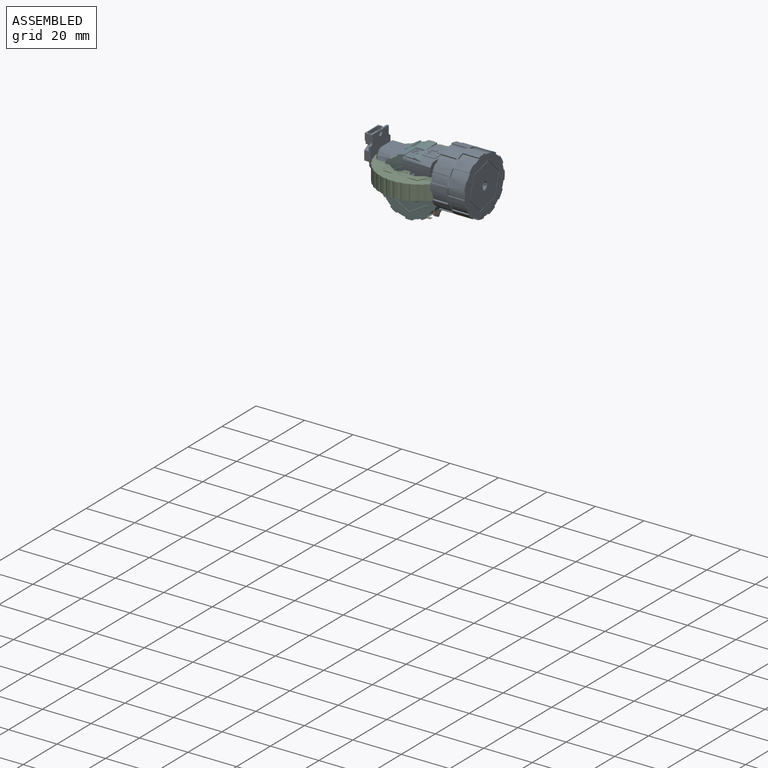
[diagram: assembled view]
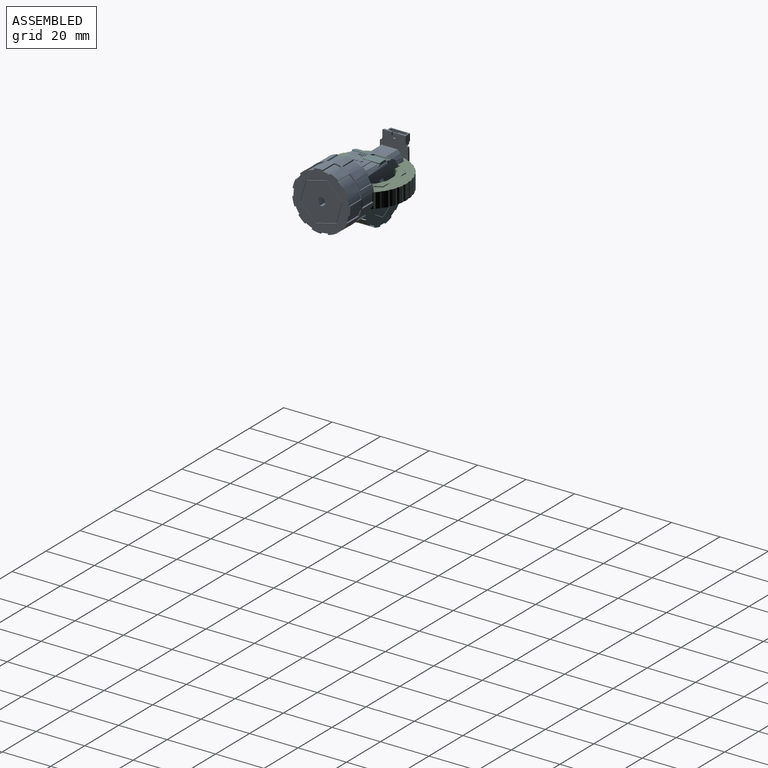
[diagram: assembled view, second angle]
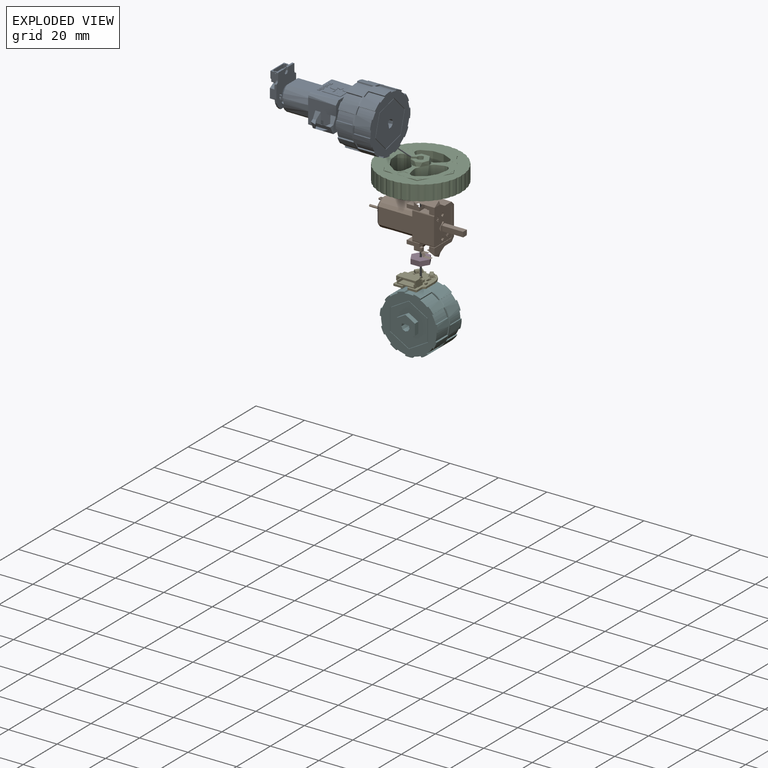
[diagram: exploded view]
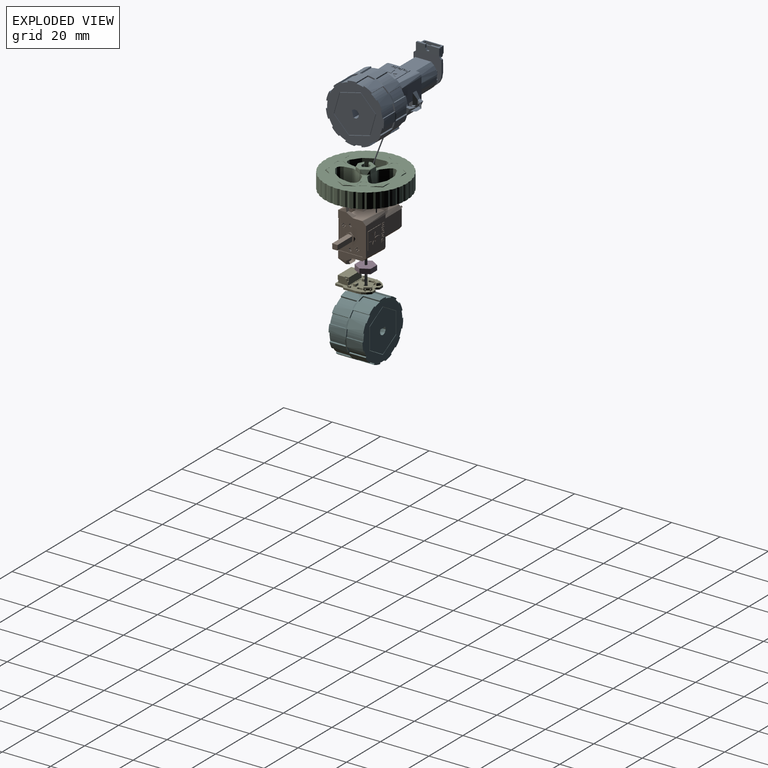
[diagram: exploded view, second angle]
FCSTD DOCUMENT  (FreeCAD 0.20R29603 (Git))
Label: Motor
License: Public Domain
LicenseURL: http://en.wikipedia.org/wiki/Public_domain
objects: PartDesign::CoordinateSystem×8, Part::Feature×6, App::Part×6, App::Link×5, PartDesign::Line×5, App::DocumentObjectGroup×3, Sketcher::SketchObject×2, PartDesign::SubShapeBinder×2, App::FeaturePython×1
note: 23 computed .brp shape members not serialized (recipe doc carries the construction recipe); baked Part::Feature solids carry a one-line shape summary decoded from their .brp
EXTERNAL_REF file=PCBot.FCStd obj=Assembly

FEATURE [Part::Feature] Part__Feature  label="motor_with_bracket_model"
  shape: bbox 39.27 x 12.11 x 26.5 mm, 981 faces (baked)
FEATURE [PartDesign::CoordinateSystem] LCS_Origin
  AttacherType = Attacher::AttachEngine3D
  MapMode = 2
  Support = -> [X_Axis001]
FEATURE [App::DocumentObjectGroup] Constraints
FEATURE [App::FeaturePython] Variables  # WARN: FeaturePython — macro-defined, semantics opaque (R4)
  Type = App::PropertyContainer
  wheelRotation = 140
FEATURE [App::DocumentObjectGroup] Configurations
FEATURE [PartDesign::CoordinateSystem] LCS_1  label="body_lcs"
  AttacherType = Attacher::AttachEngine3D
  Placement = pos=(0,-5,0) rot=(1,0,0;1.5708rad)
  Support = -> [Part__Feature]
FEATURE [Part::Feature] Part__Feature002  label="wheel_model"
  shape: bbox 34.57 x 34.53 x 8.651 mm, 208 faces, 2 solids (baked)
FEATURE [App::Link] motor_with_bracket_part  label="motor_with_bracket"
  AttachedBy = #LCS_1
  AttachedTo = Parent Assembly#LCS_Origin
  AttachmentOffset = pos=(0,0,0) rot=(1,0,0;3.14159rad)
  LinkPlacement = pos=(-6e-16,-3e-16,5) rot=(1,0,0;1.5708rad)
  LinkedObject = -> Part
  Placement = pos=(-6e-16,-3e-16,5) rot=(1,0,0;1.5708rad)
  SolverId = Asm4EE
  expr: Placement = LCS_Origin.Placement * AttachmentOffset * LCS_1.Placement ^ -1
FEATURE [Sketcher::SketchObject] output_shaft_sketch
  FullyConstrained = true
  MapMode = 11
  Placement = pos=(18.27,0,0) rot=(-0.336068,0.879839,-0.336068;1.69846rad)
  Support = -> [Part__Feature]
FEATURE [PartDesign::Line] HoleAxis_1  label="output_shaft_hole"
  AttacherType = Attacher::AttachEngineLine
  Length = 3.89809
  MapMode = 19
  Placement = pos=(18.27,0,0) rot=(-0.6742,0.301511,-0.6742;2.55591rad)
  ResizeMode = 1
  Support = -> [Part__Feature]
FEATURE [PartDesign::Line] HoleAxis_2  label="shaft_hole"
  AttacherType = Attacher::AttachEngineLine
  Length = 2.61018
  MapMode = 19
  Placement = pos=(2e-16,-1e-16,8.4) rot=(-0.983424,0.181318,0;3.14159rad)
  ResizeMode = 1
  Support = -> [Part__Feature002]
FEATURE [App::Link] wheel
  AttachedBy = #LCS_2
  AttachedTo = motor_with_bracket_part#HoleAxis_1
  AttachmentOffset = pos=(0,0,-8.5) rot=(0,0,1;2.44346rad)
  LinkPlacement = pos=(18.17,2.7e-15,5) rot=(0.704926,-0.078469,-0.704926;2.98498rad)
  LinkedObject = -> Part001
  Placement = pos=(18.17,2.7e-15,5) rot=(0.704926,-0.078469,-0.704926;2.98498rad)
  SolverId = Asm4EE
  expr: .AttachmentOffset.Rotation.Angle = Variables.wheelRotation
  expr: Placement = motor_with_bracket_part.Placement * HoleAxis_1.Placement * AttachmentOffset * LCS_2.Placement ^ -1
FEATURE [Part::Feature] Part__Feature003  label="encoder_pcb_model"
  shape: bbox 11.6 x 14.2 x 3.749 mm, 659 faces (baked)
FEATURE [PartDesign::CoordinateSystem] LCS_0  label="shaft_hole_lcs"
  AttacherType = Attacher::AttachEngine3D
  MapMode = 11
  Placement = pos=(0,0,0) rot=(0,0,1;1.5708rad)
  Support = -> [Part__Feature003]
FEATURE [App::Part] encoder_pcb  label="encoder_pcb_part"
  Group = -> [LCS_0,Part__Feature003]
  Origin = -> Origin003
FEATURE [PartDesign::Line] HoleAxis_3  label="extended_shaft_hole"
  AttacherType = Attacher::AttachEngineLine
  Length = 1.40907
  MapMode = 19
  Placement = pos=(-21,0,0) rot=(0,-1,0;1.5708rad)
  ResizeMode = 1
  Support = -> [Part__Feature]
FEATURE [App::Part] Part  label="motor_with_bracket_part"
  Group = -> [LCS_1,Part__Feature,output_shaft_sketch,HoleAxis_1,HoleAxis_3]
  Origin = -> Origin
FEATURE [App::Link] encoder_pcb001  label="encoder_pcb"
  AttachedBy = #LCS_0
  AttachedTo = motor_with_bracket_part#HoleAxis_3
  AttachmentOffset = pos=(0,0,-4.45) rot=(0,0,-1;1.5708rad)
  LinkPlacement = pos=(-16.55,-2.4e-15,5) rot=(0.57735,0.57735,-0.57735;4.18879rad)
  LinkedObject = -> encoder_pcb
  Placement = pos=(-16.55,-2.4e-15,5) rot=(0.57735,0.57735,-0.57735;4.18879rad)
  SolverId = Asm4EE
  expr: Placement = motor_with_bracket_part.Placement * HoleAxis_3.Placement * AttachmentOffset * LCS_0.Placement ^ -1
FEATURE [Part::Feature] Part__Feature004  label="encoder_disc_model"
  shape: bbox 7.65 x 7.65 x 2 mm, 6 faces (baked)
FEATURE [PartDesign::CoordinateSystem] LCS_0001  label="shaft_hole001"
  AttacherType = Attacher::AttachEngine3D
  MapMode = 11
  Placement = pos=(0,0,2) rot=(0,0,1;1.5708rad)
  Support = -> [Part__Feature004]
FEATURE [App::Part] encoder_disc  label="encoder_disc_part"
  Group = -> [LCS_0001,Part__Feature004]
  Origin = -> Origin004
FEATURE [App::Link] encoder_disc001  label="encoder_disc"
  AttachedBy = #LCS_0001
  AttachedTo = motor_with_bracket_part#HoleAxis_3
  LinkPlacement = pos=(-19,-2.6e-15,5) rot=(0.707107,0,-0.707107;3.14159rad)
  LinkedObject = -> encoder_disc
  Placement = pos=(-19,-2.6e-15,5) rot=(0.707107,0,-0.707107;3.14159rad)
  SolverId = Asm4EE
  expr: Placement = motor_with_bracket_part.Placement * HoleAxis_3.Placement * AttachmentOffset * LCS_0001.Placement ^ -1
FEATURE [PartDesign::SubShapeBinder] __motor_with_bracket_part__
  BindCopyOnChange = 0
  BindMode = 0
  ClaimChildren = false
  Context = -> Assembly [__motor_with_bracket_part__.]
  Fuse = false
  MakeFace = false
  OffsetFill = false
  OffsetIntersection = false
  OffsetJoinType = 0
  OffsetOpenResult = false
  PartialLoad = false
  Relative = true
  Support = -> [motor_with_bracket_part]
  _Version = 2
FEATURE [Sketcher::SketchObject] Sketch_1
  ExternalGeometry = -> [__motor_with_bracket_part__]
  FullyConstrained = true
  Support = -> [Part__Feature]
  sketch-geometry (2):
    g0: Circle CenterX=4.95 CenterY=9 CenterZ=0 NormalX=0 NormalY=0 NormalZ=1 AngleXU=0 Radius=1.15
    g1: Circle CenterX=4.95 CenterY=-9 CenterZ=0 NormalX=0 NormalY=0 NormalZ=1 AngleXU=0 Radius=1.15
  constraints (4):
    c: PointOnObject(g-4,g0)
    c: Tangent(g-3,g0) = 1.5708
    c: PointOnObject(g-6,g1)
    c: Tangent(g-5,g1) = 1.5708
FEATURE [PartDesign::Line] HoleAxis_4  label="front_hole"
  AttacherType = Attacher::AttachEngineLine
  Length = 3.24085
  MapMode = 19
  Placement = pos=(4.95,-9,0) rot=(0,0,1;0rad)
  ResizeMode = 1
  Support = -> [Sketch_1]
FEATURE [PartDesign::Line] HoleAxis_5  label="rear_hole"
  AttacherType = Attacher::AttachEngineLine
  Length = 3.24085
  MapMode = 19
  Placement = pos=(4.95,9,0) rot=(0,0,1;0rad)
  ResizeMode = 1
  Support = -> [Sketch_1]
FEATURE [PartDesign::CoordinateSystem] LCS_2  label="shaft_hole_2"
  AttacherType = Attacher::AttachEngine3D
  MapMode = 11
  Placement = pos=(2e-16,-1e-16,8.4) rot=(-0.567175,0.823597,0;3.14159rad)
  Support = -> [Part__Feature002]
FEATURE [App::Part] Part001  label="wheel_part"
  Group = -> [Part__Feature002,HoleAxis_2,LCS_2]
  Origin = -> Origin002
FEATURE [PartDesign::SubShapeBinder] __encoder_pcb001__
  BindCopyOnChange = 0
  BindMode = 0
  ClaimChildren = false
  Context = -> <external PCBot.FCStd>#Assembly [front_left_motor.__encoder_pcb001__.]
  Fuse = false
  MakeFace = false
  OffsetFill = false
  OffsetIntersection = false
  OffsetJoinType = 0
  OffsetOpenResult = false
  PartialLoad = false
  Relative = true
  Support = -> [encoder_pcb001]
  _Version = 2
FEATURE [PartDesign::CoordinateSystem] LCS_3  label="encoder_connector_inner_face"
  AttacherType = Attacher::AttachEngine3D
  MapMode = 45
  Placement = pos=(-18.8299,-9.5e-15,10.8) rot=(0,0,1;0rad)
  Support = -> [__encoder_pcb001__]
FEATURE [Part::Feature] Part__Feature005  label="24MMWHEEL"
  shape: bbox 24 x 14 x 24 mm, 100 faces (baked)
FEATURE [Part::Feature] Part__Feature010  label="24mmlegohub"
  shape: bbox 17.7 x 16 x 17.7 mm, 20 faces (baked)
FEATURE [PartDesign::CoordinateSystem] LCS_0002
  AttacherType = Attacher::AttachEngine3D
  MapMode = 2
  Support = -> [X_Axis005]
FEATURE [PartDesign::CoordinateSystem] LCS_4
  AttacherType = Attacher::AttachEngine3D
  MapMode = 11
  Placement = pos=(0,-9,0) rot=(0.352089,0.661828,-0.661828;2.46452rad)
  Support = -> [Part__Feature010]
FEATURE [App::Part] lego_wheel_hub_part
  Group = -> [LCS_0002,Part__Feature010,LCS_4,Part__Feature005]
  Origin = -> Origin005
FEATURE [App::DocumentObjectGroup] Parts
  Group = -> [Part,Part001,encoder_pcb,encoder_disc,lego_wheel_hub_part]
FEATURE [App::Link] lego_wheel_hub_part001
  AttachedBy = #LCS_4
  AttachedTo = motor_with_bracket_part#HoleAxis_1
  AttachmentOffset = pos=(0,0,-8) rot=(0,1,0;3.14159rad)
  LinkPlacement = pos=(19.27,2.9e-15,5) rot=(0.619495,0.619495,-0.482132;2.24309rad)
  LinkedObject = -> lego_wheel_hub_part
  Placement = pos=(19.27,2.9e-15,5) rot=(0.619495,0.619495,-0.482132;2.24309rad)
  SolverId = Asm4EE
  expr: Placement = motor_with_bracket_part.Placement * HoleAxis_1.Placement * AttachmentOffset * LCS_4.Placement ^ -1
FEATURE [App::Part] Assembly
  AssemblyType = Part::Link
  Group = -> [LCS_Origin,Constraints,Variables,Configurations,motor_with_bracket_part,encoder_pcb001,wheel,encoder_disc001,Sketch_1,__motor_with_bracket_part__,HoleAxis_4,HoleAxis_5,__encoder_pcb001__,LCS_3,lego_wheel_hub_part001]
  Origin = -> Origin001
  Type = Assembly

RESOLVED EXTERNAL PARTS (link-assembly join: the EXTERNAL_REF files above that resolve inside this repo's crawl, each included once):
---- part PCBot.FCStd = doc fcstd_50c8f65b4925 ----
FCSTD DOCUMENT  (FreeCAD 0.20R29603 (Git))
Label: PCBot
License: All rights reserved
LicenseURL: http://en.wikipedia.org/wiki/All_rights_reserved
objects: App::Link×42, App::DocumentObjectGroup×12, Part::FeaturePython×7, PartDesign::CoordinateSystem×6, App::Part×5, Sketcher::SketchObject×2, App::FeaturePython×1, Part::Feature×1
note: 16 computed .brp shape members not serialized (recipe doc carries the construction recipe); baked Part::Feature solids carry a one-line shape summary decoded from their .brp
EXTERNAL_REF file=PCB.FCStd obj=LCS_1
EXTERNAL_REF file=PCB.FCStd obj=Body
EXTERNAL_REF file=PCB.FCStd obj=HoleAxis_2
EXTERNAL_REF file=PCB.FCStd obj=HoleAxis_1
EXTERNAL_REF file=PCB.FCStd obj=HoleAxis_3
EXTERNAL_REF file=PCB.FCStd obj=HoleAxis_4
EXTERNAL_REF file=PCB.FCStd obj=HoleAxis_8
EXTERNAL_REF file=PCB.FCStd obj=HoleAxis_7
EXTERNAL_REF file=PCB.FCStd obj=HoleAxis_5
EXTERNAL_REF file=PCB.FCStd obj=HoleAxis_6
EXTERNAL_REF file=FrontBumper.FCStd obj=HoleAxis_1
EXTERNAL_REF file=PCB.FCStd obj=HoleAxis_13
EXTERNAL_REF file=FrontBumper.FCStd obj=Body
EXTERNAL_REF file=PCB.FCStd obj=HoleAxis_11
EXTERNAL_REF file=SMTSO2020CTJ.FCStd obj=HoleAxis_1
EXTERNAL_REF file=SMTSO2020CTJ.FCStd obj=Body
EXTERNAL_REF file=PCB.FCStd obj=HoleAxis_12
EXTERNAL_REF file=PCB.FCStd obj=HoleAxis_9
EXTERNAL_REF file=PCB.FCStd obj=HoleAxis_10
EXTERNAL_REF file=PCB.FCStd obj=HoleAxis_14
EXTERNAL_REF file=Motor.FCStd obj=HoleAxis_4
EXTERNAL_REF file=Motor.FCStd obj=Assembly
EXTERNAL_REF file=../../../../.cache/FreeCAD/Cache/FreeCAD_Doc_6d189d8d-c838-4f32-882a-cff2a5624c7c_da39a3_388612 obj=Assembly
EXTERNAL_REF file=../../../../.cache/FreeCAD/Cache/FreeCAD_Doc_7d98f5b5-ec9e-49f0-8bac-8bc9873ec71e_da39a3_388612 obj=Assembly
EXTERNAL_REF file=../../../../.cache/FreeCAD/Cache/FreeCAD_Doc_5ac747bb-42f3-404e-b44a-4cc5ef7ffdea_da39a3_388612 obj=Assembly
EXTERNAL_REF file=../../../../.cache/FreeCAD/Cache/FreeCAD_Doc_28002222-87aa-4ac9-8368-17bd2809cf7e_da39a3_388612 obj=Assembly
EXTERNAL_REF file=Motor.FCStd obj=LCS_3
EXTERNAL_REF file=RearBumper.FCStd obj=HoleAxis_1
EXTERNAL_REF file=RearBumper.FCStd obj=Body
EXTERNAL_REF file=ServoMount.FCStd obj=LCS_1
EXTERNAL_REF file=ServoMount.FCStd obj=Part
EXTERNAL_REF file=ServoMount.FCStd obj=LCS_0
EXTERNAL_REF file=ServoMount.FCStd obj=servo_drive
EXTERNAL_REF file=ServoMount.FCStd obj=servo_arm
EXTERNAL_REF file=RearBumper.FCStd obj=LCS_1
EXTERNAL_REF file=RearLinkage.FCStd obj=LCS_1
EXTERNAL_REF file=RearLinkage.FCStd obj=rear_linkage_body
EXTERNAL_REF file=RearLinkage.FCStd obj=hole_2
EXTERNAL_REF file=ServoLinkage.FCStd obj=LCS_1
EXTERNAL_REF file=ServoLinkage.FCStd obj=Body
EXTERNAL_REF file=RearBumper.FCStd obj=left_inner_hole

FEATURE [Sketcher::SketchObject] Sketch  label="bounding_box"
  FullyConstrained = true
  sketch-geometry (4):
    g0: LineSegment StartX=-50 StartY=50 StartZ=0 EndX=50 EndY=50 EndZ=0
    g1: LineSegment StartX=50 StartY=50 StartZ=0 EndX=50 EndY=-50 EndZ=0
    g2: LineSegment StartX=50 StartY=-50 StartZ=0 EndX=-50 EndY=-50 EndZ=0
    g3: LineSegment StartX=-50 StartY=-50 StartZ=0 EndX=-50 EndY=50 EndZ=0
  constraints (10):
    c: Coincident(g0,g1)
    c: Coincident(g1,g2)
    c: Coincident(g2,g3)
    c: Coincident(g3,g0)
    c: Horizontal(g2)
    c: Vertical(g1)
    c: Symmetric(g0,g0,g-2)
    c: Symmetric(g0,g2,g-1)
    c: Distance(g0,g-2) = 50
    c: Distance(g0,g-1) = 50
FEATURE [Sketcher::SketchObject] Sketch001  label="pcb_outline"
  FullyConstrained = true
  MapMode = 5
  sketch-geometry (4):
    g0: LineSegment StartX=-40.5 StartY=46.5 StartZ=0 EndX=40.5 EndY=46.5 EndZ=0
    g1: LineSegment StartX=40.5 StartY=46.5 StartZ=0 EndX=40.5 EndY=-46.5 EndZ=0
    g2: LineSegment StartX=40.5 StartY=-46.5 StartZ=0 EndX=-40.5 EndY=-46.5 EndZ=0
    g3: LineSegment StartX=-40.5 StartY=-46.5 StartZ=0 EndX=-40.5 EndY=46.5 EndZ=0
  constraints (10):
    c: Coincident(g0,g1)
    c: Coincident(g1,g2)
    c: Coincident(g2,g3)
    c: Coincident(g3,g0)
    c: Horizontal(g0)
    c: Vertical(g1)
    c: Symmetric(g2,g1,g-2)
    c: Symmetric(g0,g2,g-1)
    c: DistanceX(g0,g0) = 81
    c: DistanceY(g1,g1) = 93
FEATURE [PartDesign::CoordinateSystem] LCS_Origin
  AttacherType = Attacher::AttachEngine3D
  MapMode = 2
  Support = -> [X_Axis]
FEATURE [App::DocumentObjectGroup] Constraints
FEATURE [App::FeaturePython] Variables  # WARN: FeaturePython — macro-defined, semantics opaque (R4)
  Type = App::PropertyContainer
  leftWheelRotation = 15
  rightWheelRotation = 0
FEATURE [App::DocumentObjectGroup] Configurations
FEATURE [App::Link] pcb_body
  AttachedBy = #LCS_1
  AttachedTo = Parent Assembly#LCS_Origin
  LinkedObject = -> <external PCB.FCStd>#Body
  SolverId = Asm4EE
  expr: Placement = LCS_Origin.Placement * AttachmentOffset * PCB#LCS_1.Placement ^ -1
FEATURE [Part::FeaturePython] Nut  label="#2-Nut"  # Fasteners workbench fastener (typed FeaturePython)
  diameter = 3
  invert = false
  leftHanded = false
  matchOuter = false
  offset = 0
  thread = false
  type = 2
FEATURE [PartDesign::CoordinateSystem] LCS_1
  AttacherType = Attacher::AttachEngine3D
  MapMode = 11
  Placement = pos=(0,0,1.45974) rot=(0,0,1;1.5708rad)
  Support = -> [Nut]
FEATURE [App::Part] Part  label="#2_nut"
  Group = -> [Nut,LCS_1]
  Origin = -> Origin001
FEATURE [App::Link] m2_nut  label="rear_left_rear_nut"
  AttachedBy = #LCS_1
  AttachedTo = pcb_body#HoleAxis_2
  AttachmentOffset = pos=(0,0,2.5) rot=(0,0,1;1.5708rad)
  LinkPlacement = pos=(-35.75,41.8,1.04026) rot=(0,0,1;0rad)
  LinkedObject = -> Part
  Placement = pos=(-35.75,41.8,1.04026) rot=(0,0,1;0rad)
  SolverId = Asm4EE
  expr: Placement = pcb_body.Placement * PCB#HoleAxis_2.Placement * AttachmentOffset * LCS_1.Placement ^ -1
FEATURE [App::Link] _2_nut  label="rear_left_front_nut"
  AttachedBy = #LCS_1
  AttachedTo = pcb_body#HoleAxis_1
  AttachmentOffset = pos=(0,0,2.5) rot=(0,0,1;1.5708rad)
  LinkPlacement = pos=(-35.75,23.8,1.04026) rot=(0,0,1;0rad)
  LinkedObject = -> Part
  Placement = pos=(-35.75,23.8,1.04026) rot=(0,0,1;0rad)
  SolverId = Asm4EE
  expr: Placement = pcb_body.Placement * PCB#HoleAxis_1.Placement * AttachmentOffset * LCS_1.Placement ^ -1
FEATURE [App::Link] _2_nut001  label="rear_right_rear_nut"
  AttachedBy = #LCS_1
  AttachedTo = pcb_body#HoleAxis_3
  AttachmentOffset = pos=(0,0,2.5) rot=(0,0,1;1.5708rad)
  LinkPlacement = pos=(35.75,41.8,1.04026) rot=(0,0,1;0rad)
  LinkedObject = -> Part
  Placement = pos=(35.75,41.8,1.04026) rot=(0,0,1;0rad)
  SolverId = Asm4EE
  expr: Placement = pcb_body.Placement * PCB#HoleAxis_3.Placement * AttachmentOffset * LCS_1.Placement ^ -1
FEATURE [App::Link] _2_nut002  label="rear_right_front_nut"
  AttachedBy = #LCS_1
  AttachedTo = pcb_body#HoleAxis_4
  AttachmentOffset = pos=(0,0,2.5) rot=(0,0,1;1.5708rad)
  LinkPlacement = pos=(35.75,23.8,1.04026) rot=(0,0,1;0rad)
  LinkedObject = -> Part
  Placement = pos=(35.75,23.8,1.04026) rot=(0,0,1;0rad)
  SolverId = Asm4EE
  expr: Placement = pcb_body.Placement * PCB#HoleAxis_4.Placement * AttachmentOffset * LCS_1.Placement ^ -1
FEATURE [App::Link] _2_nut003  label="front_left_rear_nut"
  AttachedBy = #LCS_1
  AttachedTo = pcb_body#HoleAxis_8
  AttachmentOffset = pos=(0,0,2.5) rot=(0,0,1;1.5708rad)
  LinkPlacement = pos=(-35.75,-10.8,1.04026) rot=(0,0,1;0rad)
  LinkedObject = -> Part
  Placement = pos=(-35.75,-10.8,1.04026) rot=(0,0,1;0rad)
  SolverId = Asm4EE
  expr: Placement = pcb_body.Placement * PCB#HoleAxis_8.Placement * AttachmentOffset * LCS_1.Placement ^ -1
FEATURE [App::Link] _2_nut004  label="front_left_front_nut"
  AttachedBy = #LCS_1
  AttachedTo = pcb_body#HoleAxis_7
  AttachmentOffset = pos=(0,0,2.5) rot=(0,0,1;1.5708rad)
  LinkPlacement = pos=(-35.75,-28.8,1.04026) rot=(0,0,1;0rad)
  LinkedObject = -> Part
  Placement = pos=(-35.75,-28.8,1.04026) rot=(0,0,1;0rad)
  SolverId = Asm4EE
  expr: Placement = pcb_body.Placement * PCB#HoleAxis_7.Placement * AttachmentOffset * LCS_1.Placement ^ -1
FEATURE [App::Link] _2_nut005  label="front_right_rear_nut"
  AttachedBy = #LCS_1
  AttachedTo = pcb_body#HoleAxis_5
  AttachmentOffset = pos=(0,0,2.5) rot=(0,0,1;1.5708rad)
  LinkPlacement = pos=(35.75,-10.8,1.04026) rot=(0,0,1;0rad)
  LinkedObject = -> Part
  Placement = pos=(35.75,-10.8,1.04026) rot=(0,0,1;0rad)
  SolverId = Asm4EE
  expr: Placement = pcb_body.Placement * PCB#HoleAxis_5.Placement * AttachmentOffset * LCS_1.Placement ^ -1
FEATURE [App::Link] front_right_rear_nut  label="front_right_front_nut"
  AttachedBy = #LCS_1
  AttachedTo = pcb_body#HoleAxis_6
  AttachmentOffset = pos=(0,0,2.5) rot=(0,0,1;1.5708rad)
  LinkPlacement = pos=(35.75,-28.8,1.04026) rot=(0,0,1;0rad)
  LinkedObject = -> Part
  Placement = pos=(35.75,-28.8,1.04026) rot=(0,0,1;0rad)
  SolverId = Asm4EE
  expr: Placement = pcb_body.Placement * PCB#HoleAxis_6.Placement * AttachmentOffset * LCS_1.Placement ^ -1
FEATURE [Part::FeaturePython] Screw  label="#2x3/16in-Screw"  # Fasteners workbench fastener (typed FeaturePython)
  diameter = 3
  invert = false
  leftHanded = false
  length = 4
  lengthCustom = 4.7625
  matchOuter = false
  offset = 0
  thread = false
  type = 6
FEATURE [PartDesign::CoordinateSystem] LCS_2
  AttacherType = Attacher::AttachEngine3D
  MapMode = 11
  Placement = pos=(0,0,-4.54406) rot=(0,0,1;1.5708rad)
  Support = -> [Screw]
FEATURE [App::Part] Part001  label="#2_screw"
  Group = -> [Screw,LCS_2]
  Origin = -> Origin002
FEATURE [App::Link] _2_screw  label="rear_left_rear_screw"
  AttachedBy = #LCS_2
  AttachedTo = pcb_body#HoleAxis_2
  AttachmentOffset = pos=(0,0,2.8) rot=(0,1,0;3.14159rad)
  LinkPlacement = pos=(-35.75,41.8,-1.74406) rot=(-0.707107,0.707107,0;3.14159rad)
  LinkedObject = -> Part001
  Placement = pos=(-35.75,41.8,-1.74406) rot=(-0.707107,0.707107,0;3.14159rad)
  SolverId = Asm4EE
  expr: Placement = pcb_body.Placement * PCB#HoleAxis_2.Placement * AttachmentOffset * LCS_2.Placement ^ -1
FEATURE [App::Link] rear_left_rear_screw  label="rear_left_front_screw"
  AttachedBy = #LCS_2
  AttachedTo = pcb_body#HoleAxis_1
  AttachmentOffset = pos=(0,0,2.8) rot=(0,1,0;3.14159rad)
  LinkPlacement = pos=(-35.75,23.8,-1.74406) rot=(-0.707107,0.707107,0;3.14159rad)
  LinkedObject = -> Part001
  Placement = pos=(-35.75,23.8,-1.74406) rot=(-0.707107,0.707107,0;3.14159rad)
  SolverId = Asm4EE
  expr: Placement = pcb_body.Placement * PCB#HoleAxis_1.Placement * AttachmentOffset * LCS_2.Placement ^ -1
FEATURE [App::Link] rear_right_rear_screw
  AttachedBy = #LCS_2
  AttachedTo = pcb_body#HoleAxis_3
  AttachmentOffset = pos=(0,0,2.8) rot=(0,1,0;3.14159rad)
  LinkPlacement = pos=(35.75,41.8,-1.74406) rot=(-0.707107,0.707107,0;3.14159rad)
  LinkedObject = -> Part001
  Placement = pos=(35.75,41.8,-1.74406) rot=(-0.707107,0.707107,0;3.14159rad)
  SolverId = Asm4EE
  expr: Placement = pcb_body.Placement * PCB#HoleAxis_3.Placement * AttachmentOffset * LCS_2.Placement ^ -1
FEATURE [App::Link] rear_right_front_screw
  AttachedBy = #LCS_2
  AttachedTo = pcb_body#HoleAxis_4
  AttachmentOffset = pos=(0,0,2.8) rot=(0,1,0;3.14159rad)
  LinkPlacement = pos=(35.75,23.8,-1.74406) rot=(-0.707107,0.707107,0;3.14159rad)
  LinkedObject = -> Part001
  Placement = pos=(35.75,23.8,-1.74406) rot=(-0.707107,0.707107,0;3.14159rad)
  SolverId = Asm4EE
  expr: Placement = pcb_body.Placement * PCB#HoleAxis_4.Placement * AttachmentOffset * LCS_2.Placement ^ -1
FEATURE [App::Link] front_left_rear_screw
  AttachedBy = #LCS_2
  AttachedTo = pcb_body#HoleAxis_8
  AttachmentOffset = pos=(0,0,2.8) rot=(0,1,0;3.14159rad)
  LinkPlacement = pos=(-35.75,-10.8,-1.74406) rot=(-0.707107,0.707107,0;3.14159rad)
  LinkedObject = -> Part001
  Placement = pos=(-35.75,-10.8,-1.74406) rot=(-0.707107,0.707107,0;3.14159rad)
  SolverId = Asm4EE
  expr: Placement = pcb_body.Placement * PCB#HoleAxis_8.Placement * AttachmentOffset * LCS_2.Placement ^ -1
FEATURE [App::Link] front_left_front_screw
  AttachedBy = #LCS_2
  AttachedTo = pcb_body#HoleAxis_7
  AttachmentOffset = pos=(0,0,2.8) rot=(0,1,0;3.14159rad)
  LinkPlacement = pos=(-35.75,-28.8,-1.74406) rot=(-0.707107,0.707107,0;3.14159rad)
  LinkedObject = -> Part001
  Placement = pos=(-35.75,-28.8,-1.74406) rot=(-0.707107,0.707107,0;3.14159rad)
  SolverId = Asm4EE
  expr: Placement = pcb_body.Placement * PCB#HoleAxis_7.Placement * AttachmentOffset * LCS_2.Placement ^ -1
FEATURE [App::Link] front_right_rear_screw
  AttachedBy = #LCS_2
  AttachedTo = pcb_body#HoleAxis_5
  AttachmentOffset = pos=(0,0,2.8) rot=(0,1,0;3.14159rad)
  LinkPlacement = pos=(35.75,-10.8,-1.74406) rot=(-0.707107,0.707107,0;3.14159rad)
  LinkedObject = -> Part001
  Placement = pos=(35.75,-10.8,-1.74406) rot=(-0.707107,0.707107,0;3.14159rad)
  SolverId = Asm4EE
  expr: Placement = pcb_body.Placement * PCB#HoleAxis_5.Placement * AttachmentOffset * LCS_2.Placement ^ -1
FEATURE [App::Link] front_right_front_screw
  AttachedBy = #LCS_2
  AttachedTo = pcb_body#HoleAxis_6
  AttachmentOffset = pos=(0,0,2.8) rot=(0,1,0;3.14159rad)
  LinkPlacement = pos=(35.75,-28.8,-1.74406) rot=(-0.707107,0.707107,0;3.14159rad)
  LinkedObject = -> Part001
  Placement = pos=(35.75,-28.8,-1.74406) rot=(-0.707107,0.707107,0;3.14159rad)
  SolverId = Asm4EE
  expr: Placement = pcb_body.Placement * PCB#HoleAxis_6.Placement * AttachmentOffset * LCS_2.Placement ^ -1
FEATURE [App::DocumentObjectGroup] Group001  label="motor_fasteners"
  Group = -> [m2_nut,_2_nut,_2_nut001,_2_nut002,_2_nut003,_2_nut004,_2_nut005,front_right_rear_nut,_2_screw,rear_left_rear_screw,rear_right_rear_screw,rear_right_front_screw,front_left_rear_screw,front_left_front_screw,front_right_rear_screw,front_right_front_screw]
FEATURE [App::Link] FrontBumperBody  label="front_bumper_body"
  AttachedBy = #HoleAxis_1
  AttachedTo = pcb_body#HoleAxis_13
  AttachmentOffset = pos=(0,0,0) rot=(1,0,0;3.14159rad)
  LinkPlacement = pos=(-7.1e-15,7.1e-15,-1.7e-14) rot=(0,0,1;0rad)
  LinkedObject = -> <external FrontBumper.FCStd>#Body
  Placement = pos=(-7.1e-15,7.1e-15,-1.7e-14) rot=(0,0,1;0rad)
  SolverId = Asm4EE
  expr: Placement = pcb_body.Placement * PCB#HoleAxis_13.Placement * AttachmentOffset * FrontBumper#HoleAxis_1.Placement ^ -1
FEATURE [App::Link] SMTSO2020CTJ_body  label="rear_left_standoff"
  AttachedBy = #HoleAxis_1
  AttachedTo = pcb_body#HoleAxis_11
  AttachmentOffset = pos=(0,0,2) rot=(0,0,1;0rad)
  LinkPlacement = pos=(-5.5,41.5,-1.53) rot=(0,0,1;0rad)
  LinkedObject = -> <external SMTSO2020CTJ.FCStd>#Body
  Placement = pos=(-5.5,41.5,-1.53) rot=(0,0,1;0rad)
  SolverId = Asm4EE
  expr: Placement = pcb_body.Placement * PCB#HoleAxis_11.Placement * AttachmentOffset * SMTSO2020CTJ#HoleAxis_1.Placement ^ -1
FEATURE [App::Link] rear_right_standoff
  AttachedBy = #HoleAxis_1
  AttachedTo = pcb_body#HoleAxis_12
  AttachmentOffset = pos=(0,0,2) rot=(0,0,1;0rad)
  LinkPlacement = pos=(5.5,41.5,-1.53) rot=(0,0,1;0rad)
  LinkedObject = -> <external SMTSO2020CTJ.FCStd>#Body
  Placement = pos=(5.5,41.5,-1.53) rot=(0,0,1;0rad)
  SolverId = Asm4EE
  expr: Placement = pcb_body.Placement * PCB#HoleAxis_12.Placement * AttachmentOffset * SMTSO2020CTJ#HoleAxis_1.Placement ^ -1
FEATURE [App::Link] center_left_standoff
  AttachedBy = #HoleAxis_1
  AttachedTo = pcb_body#HoleAxis_9
  AttachmentOffset = pos=(0,0,2) rot=(0,0,1;0rad)
  LinkPlacement = pos=(-34.9,6.5,-1.53) rot=(0,0,1;0rad)
  LinkedObject = -> <external SMTSO2020CTJ.FCStd>#Body
  Placement = pos=(-34.9,6.5,-1.53) rot=(0,0,1;0rad)
  SolverId = Asm4EE
  expr: Placement = pcb_body.Placement * PCB#HoleAxis_9.Placement * AttachmentOffset * SMTSO2020CTJ#HoleAxis_1.Placement ^ -1
FEATURE [App::Link] center_right_standoff
  AttachedBy = #HoleAxis_1
  AttachedTo = pcb_body#HoleAxis_10
  AttachmentOffset = pos=(0,0,2) rot=(0,0,1;0rad)
  LinkPlacement = pos=(34.9,6.5,-1.53) rot=(0,0,1;0rad)
  LinkedObject = -> <external SMTSO2020CTJ.FCStd>#Body
  Placement = pos=(34.9,6.5,-1.53) rot=(0,0,1;0rad)
  SolverId = Asm4EE
  expr: Placement = pcb_body.Placement * PCB#HoleAxis_10.Placement * AttachmentOffset * SMTSO2020CTJ#HoleAxis_1.Placement ^ -1
FEATURE [App::Link] front_left_standoff
  AttachedBy = #HoleAxis_1
  AttachedTo = pcb_body#HoleAxis_13
  AttachmentOffset = pos=(0,0,2) rot=(0,0,1;0rad)
  LinkPlacement = pos=(-29.4289,-36.5,-1.53) rot=(0,0,1;0rad)
  LinkedObject = -> <external SMTSO2020CTJ.FCStd>#Body
  Placement = pos=(-29.4289,-36.5,-1.53) rot=(0,0,1;0rad)
  SolverId = Asm4EE
  expr: Placement = pcb_body.Placement * PCB#HoleAxis_13.Placement * AttachmentOffset * SMTSO2020CTJ#HoleAxis_1.Placement ^ -1
FEATURE [App::Link] front_right_standoff
  AttachedBy = #HoleAxis_1
  AttachedTo = pcb_body#HoleAxis_14
  AttachmentOffset = pos=(0,0,2) rot=(0,0,1;0rad)
  LinkPlacement = pos=(29.4289,-36.5,-1.53) rot=(0,0,1;0rad)
  LinkedObject = -> <external SMTSO2020CTJ.FCStd>#Body
  Placement = pos=(29.4289,-36.5,-1.53) rot=(0,0,1;0rad)
  SolverId = Asm4EE
  expr: Placement = pcb_body.Placement * PCB#HoleAxis_14.Placement * AttachmentOffset * SMTSO2020CTJ#HoleAxis_1.Placement ^ -1
FEATURE [App::DocumentObjectGroup] Group002  label="pcb_standoffs"
  Group = -> [SMTSO2020CTJ_body,rear_right_standoff,center_left_standoff,center_right_standoff,front_left_standoff,front_right_standoff]
FEATURE [App::DocumentObjectGroup] Group004  label="pcb"
  Group = -> [pcb_body,Group002]
FEATURE [Part::FeaturePython] Screw001  label="M2x8-Screw"  # Fasteners workbench fastener (typed FeaturePython)
  diameter = 1
  invert = false
  leftHanded = false
  length = 2
  lengthCustom = 8
  matchOuter = false
  offset = 0
  thread = true
  type = 29
FEATURE [PartDesign::CoordinateSystem] LCS_3
  AttacherType = Attacher::AttachEngine3D
  AttachmentOffset = pos=(0,0,2) rot=(0,0,1;0rad)
  MapMode = 11
  Placement = pos=(-1e-16,0,-2) rot=(0.707107,0.707107,0;3.14159rad)
  Support = -> [Screw001]
FEATURE [App::Part] Part002  label="m2_screw"
  Group = -> [Screw001,LCS_3]
  Origin = -> Origin003
FEATURE [App::Link] front_bumper_left_screw
  AttachedBy = #LCS_3
  AttachedTo = front_left_standoff#HoleAxis_1
  AttachmentOffset = pos=(0,0,1) rot=(0,1,0;3.14159rad)
  LinkPlacement = pos=(-29.4289,-36.5,5) rot=(0,0,1;1.5708rad)
  LinkedObject = -> Part002
  Placement = pos=(-29.4289,-36.5,5) rot=(0,0,1;1.5708rad)
  SolverId = Asm4EE
  expr: Placement = front_left_standoff.Placement * SMTSO2020CTJ#HoleAxis_1.Placement * AttachmentOffset * LCS_3.Placement ^ -1
FEATURE [App::Link] front_bumper_right_screw
  AttachedBy = #LCS_3
  AttachedTo = front_right_standoff#HoleAxis_1
  AttachmentOffset = pos=(0,0,1) rot=(0,1,0;3.14159rad)
  LinkPlacement = pos=(29.4289,-36.5,5) rot=(0,0,1;1.5708rad)
  LinkedObject = -> Part002
  Placement = pos=(29.4289,-36.5,5) rot=(0,0,1;1.5708rad)
  SolverId = Asm4EE
  expr: Placement = front_right_standoff.Placement * SMTSO2020CTJ#HoleAxis_1.Placement * AttachmentOffset * LCS_3.Placement ^ -1
FEATURE [App::DocumentObjectGroup] Group006  label="front_bumper_fastners"
  Group = -> [front_bumper_left_screw,front_bumper_right_screw]
FEATURE [App::DocumentObjectGroup] Group005  label="front_bumper"
  Group = -> [FrontBumperBody,Group006]
FEATURE [App::Link] Motor  label="rear_left_motor_"
  AttachedBy = #HoleAxis_4
  AttachedTo = pcb_body#HoleAxis_2
  AttachmentOffset = pos=(0,0,0) rot=(0,0,1;3.14159rad)
  LinkPlacement = pos=(-30.8,32.8,0) rot=(0,0,1;3.14159rad)
  LinkedObject = -> <external Motor.FCStd>#Assembly
  Placement = pos=(-30.8,32.8,0) rot=(0,0,1;3.14159rad)
  SolverId = Asm4EE
  expr: Placement = pcb_body.Placement * PCB#HoleAxis_2.Placement * AttachmentOffset * Motor#HoleAxis_4.Placement ^ -1
FEATURE [App::Link] rear_right_motor  label="rear_right_motor_"
  AttachedBy = #HoleAxis_4
  AttachedTo = pcb_body#HoleAxis_4
  LinkPlacement = pos=(30.8,32.8,0) rot=(0,0,1;0rad)
  LinkedObject = -> <external Motor.FCStd>#Assembly
  Placement = pos=(30.8,32.8,0) rot=(0,0,1;0rad)
  SolverId = Asm4EE
  expr: Placement = pcb_body.Placement * PCB#HoleAxis_4.Placement * AttachmentOffset * Motor#HoleAxis_4.Placement ^ -1
FEATURE [App::Link] front_left_motor  label="front_left_motor_"
  AttachedBy = #HoleAxis_4
  AttachedTo = pcb_body#HoleAxis_8
  AttachmentOffset = pos=(0,0,0) rot=(0,0,1;3.14159rad)
  LinkPlacement = pos=(-30.8,-19.8,0) rot=(0,0,1;3.14159rad)
  LinkedObject = -> <external Motor.FCStd>#Assembly
  Placement = pos=(-30.8,-19.8,0) rot=(0,0,1;3.14159rad)
  SolverId = Asm4EE
  expr: Placement = pcb_body.Placement * PCB#HoleAxis_8.Placement * AttachmentOffset * Motor#HoleAxis_4.Placement ^ -1
FEATURE [App::Link] Motor001  label="front_right_motor_"
  AttachedBy = #HoleAxis_4
  AttachedTo = pcb_body#HoleAxis_6
  LinkPlacement = pos=(30.8,-19.8,0) rot=(0,0,1;0rad)
  LinkedObject = -> <external Motor.FCStd>#Assembly
  Placement = pos=(30.8,-19.8,0) rot=(0,0,1;0rad)
  SolverId = Asm4EE
  expr: Placement = pcb_body.Placement * PCB#HoleAxis_6.Placement * AttachmentOffset * Motor#HoleAxis_4.Placement ^ -1
FEATURE [Part::FeaturePython] Motor_var  label="rear_left_motor"  # link proxy (typed FeaturePython)
  AttachedBy = #HoleAxis_4
  AttachedTo = pcb_body#HoleAxis_2
  AttachmentOffset = pos=(0,0,0) rot=(0,0,1;3.14159rad)
  LinkedObject = -> <external ../../../../.cache/FreeCAD/Cache/FreeCAD_Doc_6d189d8d-c838-4f32-882a-cff2a5624c7c_da39a3_388612>#Assembly
  Placement = pos=(-30.8,32.8,0) rot=(0,0,1;3.14159rad)
  SolverId = Asm4EE
  SourceObject = -> <external Motor.FCStd>#Assembly
  Type = Asm4::VariantLink
  wheelRotation = 0
  expr: Placement = pcb_body.Placement * PCB#HoleAxis_2.Placement * AttachmentOffset * varTmpDoc_1#HoleAxis_4.Placement ^ -1
  expr: wheelRotation = -Variables.rightWheelRotation
FEATURE [Part::FeaturePython] Motor_var_2  label="rear_right_motor"  # link proxy (typed FeaturePython)
  AttachedBy = #HoleAxis_4
  AttachedTo = pcb_body#HoleAxis_4
  LinkedObject = -> <external ../../../../.cache/FreeCAD/Cache/FreeCAD_Doc_7d98f5b5-ec9e-49f0-8bac-8bc9873ec71e_da39a3_388612>#Assembly
  Placement = pos=(30.8,32.8,0) rot=(0,0,1;0rad)
  SolverId = Asm4EE
  SourceObject = -> <external Motor.FCStd>#Assembly
  Type = Asm4::VariantLink
  wheelRotation = 0
  expr: Placement = pcb_body.Placement * PCB#HoleAxis_4.Placement * AttachmentOffset * varTmpDoc_2#HoleAxis_4.Placement ^ -1
  expr: wheelRotation = Variables.rightWheelRotation
FEATURE [Part::FeaturePython] Motor_var_3  label="front_left_motor"  # link proxy (typed FeaturePython)
  AttachedBy = #HoleAxis_4
  AttachedTo = pcb_body#HoleAxis_8
  AttachmentOffset = pos=(0,0,0) rot=(0,0,1;3.14159rad)
  LinkedObject = -> <external ../../../../.cache/FreeCAD/Cache/FreeCAD_Doc_5ac747bb-42f3-404e-b44a-4cc5ef7ffdea_da39a3_388612>#Assembly
  Placement = pos=(-30.8,-19.8,0) rot=(0,0,1;3.14159rad)
  SolverId = Asm4EE
  SourceObject = -> <external Motor.FCStd>#Assembly
  Type = Asm4::VariantLink
  wheelRotation = 0
  expr: Placement = pcb_body.Placement * PCB#HoleAxis_8.Placement * AttachmentOffset * varTmpDoc_3#HoleAxis_4.Placement ^ -1
  expr: wheelRotation = -Variables.rightWheelRotation
FEATURE [Part::FeaturePython] Motor_var_4  label="front_right_motor"  # link proxy (typed FeaturePython)
  AttachedBy = #HoleAxis_4
  AttachedTo = pcb_body#HoleAxis_6
  LinkedObject = -> <external ../../../../.cache/FreeCAD/Cache/FreeCAD_Doc_28002222-87aa-4ac9-8368-17bd2809cf7e_da39a3_388612>#Assembly
  Placement = pos=(30.8,-19.8,0) rot=(0,0,1;0rad)
  SolverId = Asm4EE
  SourceObject = -> <external Motor.FCStd>#Assembly
  Type = Asm4::VariantLink
  wheelRotation = 0
  expr: Placement = pcb_body.Placement * PCB#HoleAxis_6.Placement * AttachmentOffset * varTmpDoc_4#HoleAxis_4.Placement ^ -1
  expr: wheelRotation = Variables.rightWheelRotation
FEATURE [App::DocumentObjectGroup] Group  label="motors"
  Group = -> [Group001,Motor,rear_right_motor,front_left_motor,Motor001,Motor_var,Motor_var_2,Motor_var_3,Motor_var_4]
FEATURE [Part::Feature] Part__Feature  label="SHR-06V-S-B"
  shape: bbox 9 x 2.8 x 5 mm, 88 faces (baked)
FEATURE [PartDesign::CoordinateSystem] LCS_0
  AttacherType = Attacher::AttachEngine3D
  MapMode = 2
  Support = -> [X_Axis004]
FEATURE [PartDesign::CoordinateSystem] LCS_4
  AttacherType = Attacher::AttachEngine3D
  MapMode = 45
  Placement = pos=(2e-16,-2.47452,3.90001) rot=(0,0,1;1.5708rad)
  Support = -> [Part__Feature]
FEATURE [App::Part] Part_2  label="SHR-06V-S-B001"
  Group = -> [LCS_0,Part__Feature,LCS_4]
  Origin = -> Origin004
FEATURE [App::DocumentObjectGroup] Parts
  Group = -> [Part,Part001,Part002,Part_2]
FEATURE [App::Link] SHR_06V_S_B001  label="rear_left_motor_connector"
  AttachedBy = #LCS_4
  AttachedTo = Motor#LCS_3
  AttachmentOffset = pos=(0,0,0) rot=(1,0,0;3.14159rad)
  LinkPlacement = pos=(-14.4446,32.8,14.7) rot=(-0.707107,0.707107,0;3.14159rad)
  LinkedObject = -> Part_2
  Placement = pos=(-14.4446,32.8,14.7) rot=(-0.707107,0.707107,0;3.14159rad)
  SolverId = Asm4EE
  expr: Placement = Motor.Placement * Motor#LCS_3.Placement * AttachmentOffset * LCS_4.Placement ^ -1
FEATURE [App::Link] rear_right_motor_connector
  AttachedBy = #LCS_4
  AttachedTo = rear_right_motor#LCS_3
  AttachmentOffset = pos=(0,0,0) rot=(1,0,0;3.14159rad)
  LinkPlacement = pos=(14.4446,32.8,14.7) rot=(0.707107,0.707107,0;3.14159rad)
  LinkedObject = -> Part_2
  Placement = pos=(14.4446,32.8,14.7) rot=(0.707107,0.707107,0;3.14159rad)
  SolverId = Asm4EE
  expr: Placement = rear_right_motor.Placement * Motor#LCS_3.Placement * AttachmentOffset * LCS_4.Placement ^ -1
FEATURE [App::Link] SHR_06V_S_B001001  label="front_left_motor_connector"
  AttachedBy = #LCS_4
  AttachedTo = front_left_motor#LCS_3
  AttachmentOffset = pos=(0,0,0) rot=(1,0,0;3.14159rad)
  LinkPlacement = pos=(-14.4446,-19.8,14.7) rot=(-0.707107,0.707107,0;3.14159rad)
  LinkedObject = -> Part_2
  Placement = pos=(-14.4446,-19.8,14.7) rot=(-0.707107,0.707107,0;3.14159rad)
  SolverId = Asm4EE
  expr: Placement = front_left_motor.Placement * Motor#LCS_3.Placement * AttachmentOffset * LCS_4.Placement ^ -1
FEATURE [App::Link] SHR_06V_S_B001002  label="front_right_motor_connector"
  AttachedBy = #LCS_4
  AttachedTo = Motor001#LCS_3
  AttachmentOffset = pos=(0,0,0) rot=(1,0,0;3.14159rad)
  LinkPlacement = pos=(14.4446,-19.8,14.7) rot=(0.707107,0.707107,0;3.14159rad)
  LinkedObject = -> Part_2
  Placement = pos=(14.4446,-19.8,14.7) rot=(0.707107,0.707107,0;3.14159rad)
  SolverId = Asm4EE
  expr: Placement = Motor001.Placement * Motor#LCS_3.Placement * AttachmentOffset * LCS_4.Placement ^ -1
FEATURE [App::DocumentObjectGroup] Group007  label="cables"
  Group = -> [SHR_06V_S_B001,rear_right_motor_connector,SHR_06V_S_B001001,SHR_06V_S_B001002]
FEATURE [App::Link] rear_bumper_body
  AttachedBy = #HoleAxis_1
  AttachedTo = pcb_body#HoleAxis_12
  LinkedObject = -> <external RearBumper.FCStd>#Body
  SolverId = Asm4EE
  expr: Placement = pcb_body.Placement * PCB#HoleAxis_12.Placement * AttachmentOffset * RearBumper#HoleAxis_1.Placement ^ -1
FEATURE [App::Link] front_left_screw  label="rear_left_screw"
  AttachedBy = #LCS_3
  AttachedTo = pcb_body#HoleAxis_11
  AttachmentOffset = pos=(0,0,3) rot=(0,1,0;3.14159rad)
  LinkPlacement = pos=(-5.5,41.5,5) rot=(0,0,1;1.5708rad)
  LinkedObject = -> Part002
  Placement = pos=(-5.5,41.5,5) rot=(0,0,1;1.5708rad)
  SolverId = Asm4EE
  expr: Placement = pcb_body.Placement * PCB#HoleAxis_11.Placement * AttachmentOffset * LCS_3.Placement ^ -1
FEATURE [App::Link] rear_right_screw
  AttachedBy = #LCS_3
  AttachedTo = pcb_body#HoleAxis_12
  AttachmentOffset = pos=(0,0,3) rot=(0,1,0;3.14159rad)
  LinkPlacement = pos=(5.5,41.5,5) rot=(0,0,1;1.5708rad)
  LinkedObject = -> Part002
  Placement = pos=(5.5,41.5,5) rot=(0,0,1;1.5708rad)
  SolverId = Asm4EE
  expr: Placement = pcb_body.Placement * PCB#HoleAxis_12.Placement * AttachmentOffset * LCS_3.Placement ^ -1
FEATURE [App::DocumentObjectGroup] Group009  label="rear_bumper_fasteners"
  Group = -> [front_left_screw,rear_right_screw]
FEATURE [App::DocumentObjectGroup] Group008  label="rear_bumper"
  Group = -> [rear_bumper_body,Group009]
FEATURE [App::Link] servo_part
  AttachedBy = #LCS_1
  AttachedTo = pcb_body#LCS_1
  AttachmentOffset = pos=(30,-5,0) rot=(0,0,1;1.5708rad)
  LinkPlacement = pos=(30,-5,0) rot=(0,0,1;1.5708rad)
  LinkedObject = -> <external ServoMount.FCStd>#Part
  Placement = pos=(30,-5,0) rot=(0,0,1;1.5708rad)
  SolverId = Asm4EE
  expr: Placement = pcb_body.Placement * PCB#LCS_1.Placement * AttachmentOffset * ServoMount#LCS_1.Placement ^ -1
FEATURE [App::Link] servo_arm
  AttachedBy = #LCS_0
  AttachedTo = servo_part#servo_drive
  AttachmentOffset = pos=(0,0,-3) rot=(0,0,1;-2.35619rad)
  LinkPlacement = pos=(-5.88297,16.0891,9.98909) rot=(0.357407,0.862856,-0.357407;4.56541rad)
  LinkedObject = -> <external ServoMount.FCStd>#servo_arm
  Placement = pos=(-5.88297,16.0891,9.98909) rot=(0.357407,0.862856,-0.357407;4.56541rad)
  SolverId = Asm4EE
  expr: Placement = servo_part.Placement * ServoMount#servo_drive.Placement * AttachmentOffset * ServoMount#LCS_0.Placement ^ -1
FEATURE [App::Link] rear_linkage_body
  AttachedBy = #LCS_1
  AttachedTo = rear_bumper_body#LCS_1
  AttachmentOffset = pos=(0,0,3) rot=(0,0,1;0rad)
  LinkPlacement = pos=(-18,52.1588,22) rot=(0,1,0;4.71239rad)
  LinkedObject = -> <external RearLinkage.FCStd>#rear_linkage_body
  Placement = pos=(-18,52.1588,22) rot=(0,1,0;4.71239rad)
  SolverId = Asm4EE
  expr: Placement = rear_bumper_body.Placement * RearBumper#LCS_1.Placement * AttachmentOffset * RearLinkage#LCS_1.Placement ^ -1
FEATURE [App::Link] servo_linkage
  AttachedBy = #LCS_1
  AttachedTo = rear_linkage_body001#hole_2
  AttachmentOffset = pos=(0,0,-5) rot=(0,0,1;4.71239rad)
  LinkPlacement = pos=(-5,47.861,26.2977) rot=(0,0,1;4.71239rad)
  LinkedObject = -> <external ServoLinkage.FCStd>#Body
  Placement = pos=(-5,47.861,26.2977) rot=(0,0,1;4.71239rad)
  SolverId = Asm4EE
  expr: Placement = rear_linkage_body001.Placement * RearLinkage#hole_2.Placement * AttachmentOffset * ServoLinkage#LCS_1.Placement ^ -1
FEATURE [App::Link] rear_linkage_body001
  AttachedBy = #LCS_1
  AttachedTo = rear_bumper_body#left_inner_hole
  LinkPlacement = pos=(-10,52.1588,22) rot=(0,-1,0;1.5708rad)
  LinkedObject = -> <external RearLinkage.FCStd>#rear_linkage_body
  Placement = pos=(-10,52.1588,22) rot=(0,-1,0;1.5708rad)
  SolverId = Asm4EE
  expr: Placement = rear_bumper_body.Placement * RearBumper#left_inner_hole.Placement * AttachmentOffset * RearLinkage#LCS_1.Placement ^ -1
FEATURE [App::Part] Assembly
  AssemblyType = Part::Link
  Group = -> [LCS_Origin,Constraints,Variables,Configurations,pcb_body,Group,Group004,front_left_standoff,front_right_standoff,center_right_standoff,center_left_standoff,SMTSO2020CTJ_body,rear_right_standoff,Group002,_2_nut004,rear_right_front_screw,_2_screw,_2_nut005,rear_right_rear_screw,front_right_rear_screw,_2_nut,front_right_front_screw,_2_nut001,rear_left_rear_screw,m2_nut,_2_nut003,front_right_rear_nut,+32 more]
  Origin = -> Origin
  Type = Assembly
